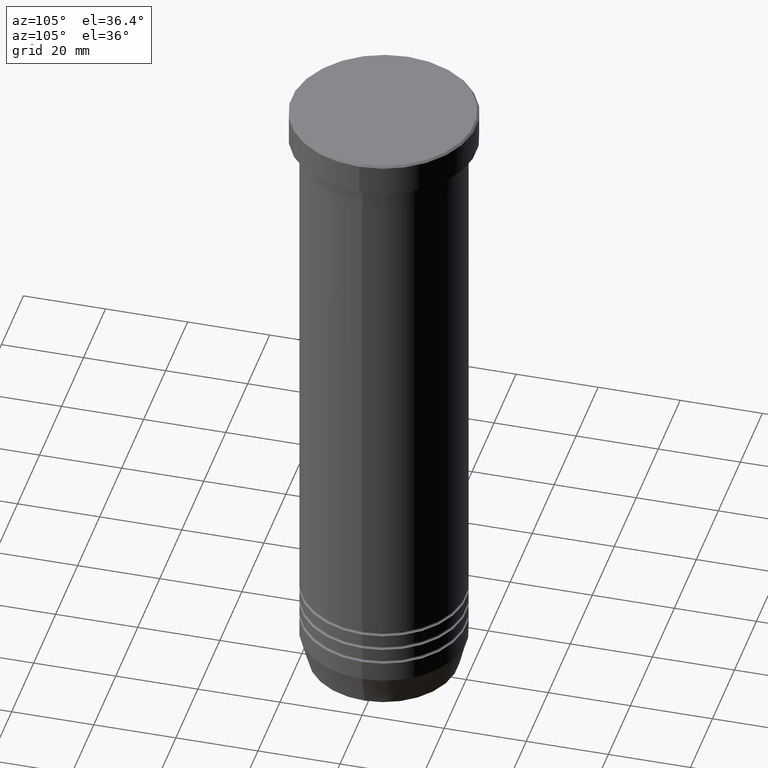
[diagram: clean part render]
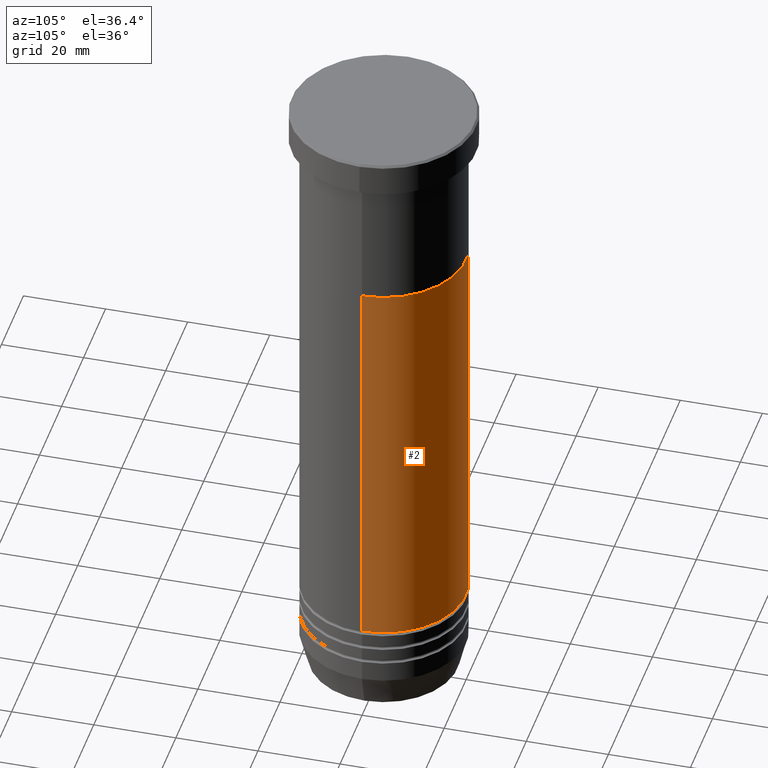
[diagram: same view with one face highlighted and labeled with its STEP entity id]
A machine part, auxiliary view. The second image highlights one B-rep face of the part: STEP entity #2.
In plain terms, the highlighted cylindrical surface (partial cylindrical patch) has radius 20 mm, axis along (-0, -0, 1).
Its self-contained STEP definition (entity closure, byte-faithful):
#2 = ADVANCED_FACE ( 'NONE', ( #282 ), #859, .T. ) ;
#40 = CARTESIAN_POINT ( 'NONE',  ( 0.000000000000000000, 0.000000000000000000, -40.00000000000000000 ) ) ;
#42 = DIRECTION ( 'NONE',  ( -0.000000000000000000, -0.000000000000000000, 1.000000000000000000 ) ) ;
#103 = CARTESIAN_POINT ( 'NONE',  ( -19.99999999999999289, 2.449293598294705724E-15, -138.0000000000000000 ) ) ;
#106 = EDGE_LOOP ( 'NONE', ( #698, #1037, #186, #628 ) ) ;
#121 = CARTESIAN_POINT ( 'NONE',  ( 19.99999999999999645, 0.000000000000000000, 0.000000000000000000 ) ) ;
#126 = VERTEX_POINT ( 'NONE', #103 ) ;
#137 = CARTESIAN_POINT ( 'NONE',  ( -20.00000000000000000, 2.449293598294706513E-15, -40.00000000000000000 ) ) ;
#153 = VERTEX_POINT ( 'NONE', #994 ) ;
#186 = ORIENTED_EDGE ( 'NONE', *, *, #281, .F. ) ;
#252 = VECTOR ( 'NONE', #608, 1000.000000000000000 ) ;
#256 = EDGE_CURVE ( 'NONE', #802, #153, #294, .T. ) ;
#281 = EDGE_CURVE ( 'NONE', #153, #295, #794, .T. ) ;
#282 = FACE_OUTER_BOUND ( 'NONE', #106, .T. ) ;
#290 = LINE ( 'NONE', #768, #252 ) ;
#294 = LINE ( 'NONE', #121, #845 ) ;
#295 = VERTEX_POINT ( 'NONE', #137 ) ;
#303 = AXIS2_PLACEMENT_3D ( 'NONE', #1018, #42, #935 ) ;
#305 = CIRCLE ( 'NONE', #403, 19.99999999999999289 ) ;
#395 = DIRECTION ( 'NONE',  ( 1.000000000000000000, 0.000000000000000000, 0.000000000000000000 ) ) ;
#403 = AXIS2_PLACEMENT_3D ( 'NONE', #477, #589, #395 ) ;
#435 = AXIS2_PLACEMENT_3D ( 'NONE', #40, #514, #441 ) ;
#441 = DIRECTION ( 'NONE',  ( 1.000000000000000000, 0.000000000000000000, 0.000000000000000000 ) ) ;
#477 = CARTESIAN_POINT ( 'NONE',  ( 0.000000000000000000, 0.000000000000000000, -138.0000000000000000 ) ) ;
#514 = DIRECTION ( 'NONE',  ( -0.000000000000000000, -0.000000000000000000, 1.000000000000000000 ) ) ;
#527 = DIRECTION ( 'NONE',  ( -0.000000000000000000, -0.000000000000000000, 1.000000000000000000 ) ) ;
#589 = DIRECTION ( 'NONE',  ( -0.000000000000000000, -0.000000000000000000, 1.000000000000000000 ) ) ;
#608 = DIRECTION ( 'NONE',  ( -0.000000000000000000, -0.000000000000000000, 1.000000000000000000 ) ) ;
#621 = CARTESIAN_POINT ( 'NONE',  ( 19.99999999999999289, 0.000000000000000000, -138.0000000000000000 ) ) ;
#628 = ORIENTED_EDGE ( 'NONE', *, *, #256, .F. ) ;
#629 = EDGE_CURVE ( 'NONE', #126, #295, #290, .T. ) ;
#698 = ORIENTED_EDGE ( 'NONE', *, *, #719, .T. ) ;
#719 = EDGE_CURVE ( 'NONE', #802, #126, #305, .T. ) ;
#768 = CARTESIAN_POINT ( 'NONE',  ( -19.99999999999999645, 2.449293598294706119E-15, 0.000000000000000000 ) ) ;
#794 = CIRCLE ( 'NONE', #435, 20.00000000000000000 ) ;
#802 = VERTEX_POINT ( 'NONE', #621 ) ;
#845 = VECTOR ( 'NONE', #527, 1000.000000000000000 ) ;
#859 = CYLINDRICAL_SURFACE ( 'NONE', #303, 19.99999999999999645 ) ;
#935 = DIRECTION ( 'NONE',  ( 1.000000000000000000, 0.000000000000000000, 0.000000000000000000 ) ) ;
#994 = CARTESIAN_POINT ( 'NONE',  ( 20.00000000000000000, 0.000000000000000000, -40.00000000000000000 ) ) ;
#1018 = CARTESIAN_POINT ( 'NONE',  ( 0.000000000000000000, 0.000000000000000000, 0.000000000000000000 ) ) ;
#1037 = ORIENTED_EDGE ( 'NONE', *, *, #629, .T. ) ;